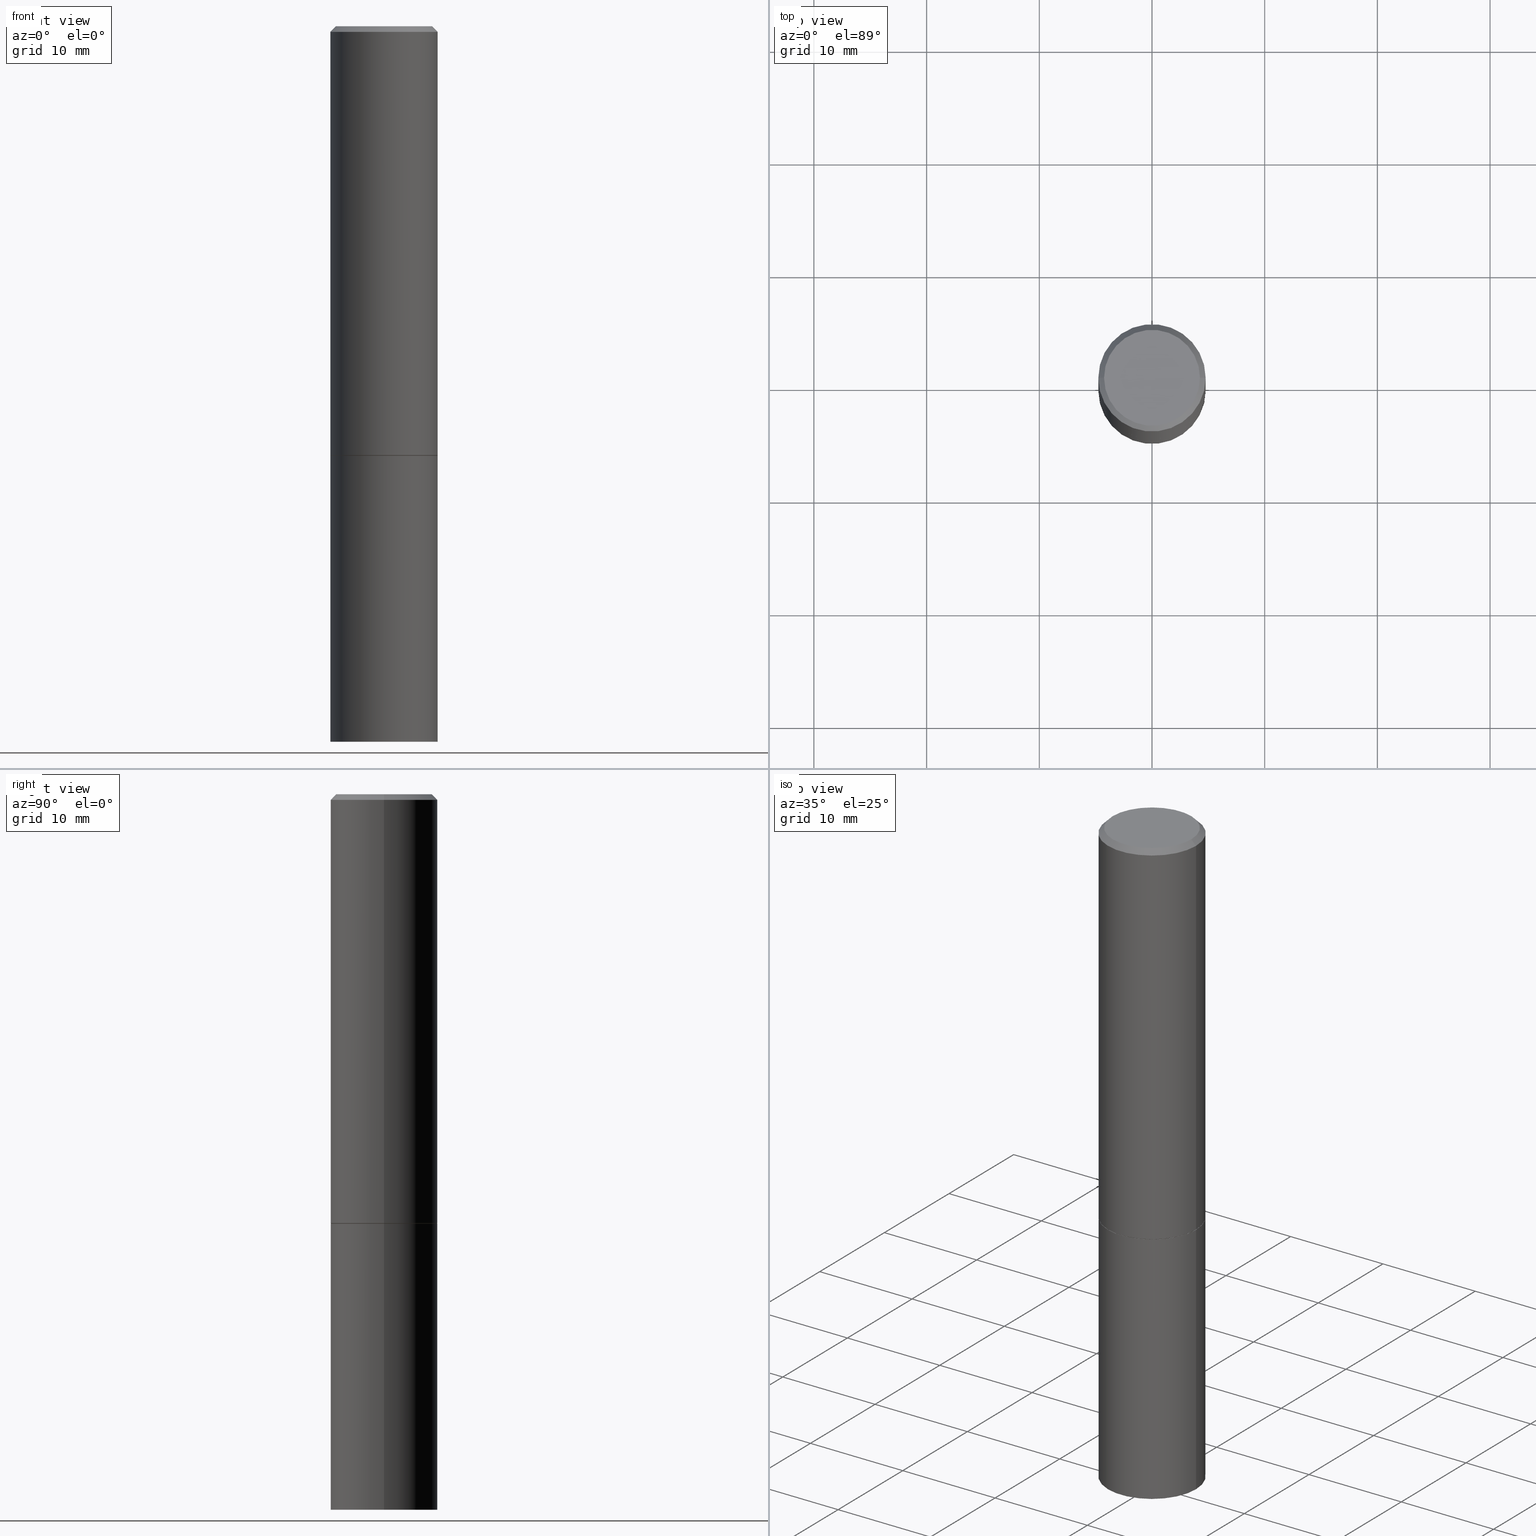
[diagram: canonical four-view strip — front | top / right | iso, engineering-drawing reading convention]
A machine part, canonical four-view strip (front | top / right | iso — engineering-drawing reading convention). The complete STEP part file that produces these views, byte-faithful:
ISO-10303-21;
HEADER;
FILE_DESCRIPTION (( 'STEP AP203' ),
    '1' );
FILE_NAME ('30179.STEP',
    '2023-03-21T20:24:40',
    ( '' ),
    ( '' ),
    'SwSTEP 2.0',
    'SolidWorks 2022',
    '' );
FILE_SCHEMA (( 'CONFIG_CONTROL_DESIGN' ));
ENDSEC;

DATA;
#1 = CARTESIAN_POINT ( 'NONE',  ( 1.309305502066211690E-15, 0.1874999999999947820, -1.500000000000000666 ) ) ;
#2 = COORDINATED_UNIVERSAL_TIME_OFFSET ( 5, 0, .BEHIND. ) ;
#3 = APPROVAL_STATUS ( 'not_yet_approved' ) ;
#4 = CYLINDRICAL_SURFACE ( 'NONE', #201, 0.1875000000000000278 ) ;
#5 = CARTESIAN_POINT ( 'NONE',  ( 3.668203209277704895E-29, -5.237222008264718177E-15, -1.500000000000000222 ) ) ;
#6 = COORDINATED_UNIVERSAL_TIME_OFFSET ( 5, 0, .BEHIND. ) ;
#7 = CARTESIAN_POINT ( 'NONE',  ( 0.000000000000000000, 0.000000000000000000, 0.000000000000000000 ) ) ;
#8 = PERSON_AND_ORGANIZATION ( #159, #151 ) ;
#9 = AXIS2_PLACEMENT_3D ( 'NONE', #353, #175, #52 ) ;
#10 = CARTESIAN_POINT ( 'NONE',  ( -0.1874999999999999722, -1.319512447301180005E-15, -1.499000000000000110 ) ) ;
#11 = ORIENTED_EDGE ( 'NONE', *, *, #19, .F. ) ;
#12 = CARTESIAN_POINT ( 'NONE',  ( -0.1874999999999999167, 1.332267629550187257E-15, -9.223003294227943787E-30 ) ) ;
#13 = CLOSED_SHELL ( 'NONE', ( #177, #205, #30, #248, #285, #131, #298, #180 ) ) ;
#14 = EDGE_LOOP ( 'NONE', ( #381, #264, #210, #369 ) ) ;
#15 = FACE_OUTER_BOUND ( 'NONE', #185, .T. ) ;
#16 = ORIENTED_EDGE ( 'NONE', *, *, #32, .T. ) ;
#17 = DIRECTION ( 'NONE',  ( 2.445468806185136597E-29, -3.491481338843145583E-15, -1.000000000000000000 ) ) ;
#18 = ORIENTED_EDGE ( 'NONE', *, *, #34, .F. ) ;
#19 = EDGE_CURVE ( 'NONE', #280, #306, #227, .T. ) ;
#20 = DESIGN_CONTEXT ( 'detailed design', #90, 'design' ) ;
#21 = CYLINDRICAL_SURFACE ( 'NONE', #68, 0.1874999999999999167 ) ;
#22 = CARTESIAN_POINT ( 'NONE',  ( 3.668203209277704895E-29, -5.237222008264718177E-15, -1.500000000000000222 ) ) ;
#23 = ORIENTED_EDGE ( 'NONE', *, *, #347, .T. ) ;
#24 = CARTESIAN_POINT ( 'NONE',  ( 0.1874999999999999167, -1.309305502066174219E-15, 9.142831454617375408E-30 ) ) ;
#25 = CARTESIAN_POINT ( 'NONE',  ( -0.1864999999999999991, -3.912059806072131336E-15, -1.500000000000000222 ) ) ;
#26 = FACE_OUTER_BOUND ( 'NONE', #204, .T. ) ;
#27 = DIRECTION ( 'NONE',  ( 1.000000000000000000, -6.982962677686266711E-15, 4.876502603340349702E-29 ) ) ;
#28 = AXIS2_PLACEMENT_3D ( 'NONE', #372, #208, #199 ) ;
#29 = CC_DESIGN_SECURITY_CLASSIFICATION ( #145, ( #341 ) ) ;
#30 = ADVANCED_FACE ( 'NONE', ( #355 ), #287, .T. ) ;
#31 = APPROVAL_ROLE ( '' ) ;
#32 = EDGE_CURVE ( 'NONE', #81, #58, #108, .T. ) ;
#33 = APPROVAL_ROLE ( '' ) ;
#34 = EDGE_CURVE ( 'NONE', #314, #370, #245, .T. ) ;
#35 = APPROVAL_DATE_TIME ( #100, #386 ) ;
#36 = VECTOR ( 'NONE', #188, 39.37007874015748143 ) ;
#37 = CARTESIAN_POINT ( 'NONE',  ( 1.023679411735509486E-27, -1.461542896802698140E-13, -41.86025228154191069 ) ) ;
#38 = DIRECTION ( 'NONE',  ( -2.445468806185136597E-29, 3.491481338843145583E-15, 1.000000000000000000 ) ) ;
#39 = DATE_AND_TIME ( #193, #223 ) ;
#40 = PRODUCT ( '30179', '30179', '', ( #93 ) ) ;
#41 = CYLINDRICAL_SURFACE ( 'NONE', #374, 0.1875000000000000278 ) ;
#42 = ADVANCED_FACE ( 'NONE', ( #315 ), #333, .F. ) ;
#43 = VECTOR ( 'NONE', #339, 39.37007874015748143 ) ;
#44 = EDGE_LOOP ( 'NONE', ( #153, #319, #73, #317 ) ) ;
#45 = CIRCLE ( 'NONE', #206, 0.1674999999999998435 ) ;
#46 = ORIENTED_EDGE ( 'NONE', *, *, #291, .T. ) ;
#47 = DIRECTION ( 'NONE',  ( -0.7071067811865232589, 7.493145998870265808E-15, 0.7071067811865715536 ) ) ;
#48 = AXIS2_PLACEMENT_3D ( 'NONE', #286, #17, #184 ) ;
#49 = ORIENTED_EDGE ( 'NONE', *, *, #107, .F. ) ;
#50 = DIRECTION ( 'NONE',  ( 1.000000000000000000, -6.982962677686266711E-15, 0.000000000000000000 ) ) ;
#51 = ADVANCED_FACE ( 'NONE', ( #198 ), #41, .T. ) ;
#52 = DIRECTION ( 'NONE',  ( 1.000000000000000000, -6.982962677686266711E-15, 0.000000000000000000 ) ) ;
#53 = DIRECTION ( 'NONE',  ( 1.000000000000000000, -6.982962677686268288E-15, 0.000000000000000000 ) ) ;
#54 = DIRECTION ( 'NONE',  ( -2.438088387897960049E-29, 3.491481338843145188E-15, 1.000000000000000000 ) ) ;
#55 = CARTESIAN_POINT ( 'NONE',  ( -0.1874999999999998335, 1.239475875289310921E-15, -0.02000000000000001429 ) ) ;
#56 = CARTESIAN_POINT ( 'NONE',  ( -0.1874999999999998335, 1.239475875289310921E-15, -0.02000000000000001429 ) ) ;
#57 = APPROVAL ( #273, 'UNSPECIFIED' ) ;
#58 = VERTEX_POINT ( 'NONE', #170 ) ;
#59 = CARTESIAN_POINT ( 'NONE',  ( -0.1875000000000000278, 1.332267629550188046E-15, -9.223003294227947991E-30 ) ) ;
#60 = DIRECTION ( 'NONE',  ( 0.000000000000000000, 0.000000000000000000, 1.000000000000000000 ) ) ;
#61 = CONICAL_SURFACE ( 'NONE', #48, 751.2258538476485228, 1.518436449235072372 ) ;
#62 = ORIENTED_EDGE ( 'NONE', *, *, #34, .T. ) ;
#63 = ADVANCED_FACE ( 'NONE', ( #224 ), #4, .T. ) ;
#64 = SECURITY_CLASSIFICATION_LEVEL ( 'unclassified' ) ;
#65 = PERSON_AND_ORGANIZATION_ROLE ( 'creator' ) ;
#66 = PERSON_AND_ORGANIZATION ( #159, #151 ) ;
#67 = VECTOR ( 'NONE', #47, 39.37007874015748854 ) ;
#68 = AXIS2_PLACEMENT_3D ( 'NONE', #82, #378, #213 ) ;
#69 = DIRECTION ( 'NONE',  ( -2.445468806185136597E-29, 3.491481338843145583E-15, 1.000000000000000000 ) ) ;
#70 = CARTESIAN_POINT ( 'NONE',  ( 0.000000000000000000, 0.000000000000000000, 0.000000000000000000 ) ) ;
#71 = CARTESIAN_POINT ( 'NONE',  ( 0.1874999999999998335, -1.356173001359024283E-15, -0.02000000000000001429 ) ) ;
#72 = DIRECTION ( 'NONE',  ( -2.445468806185136597E-29, 3.491481338843145583E-15, 1.000000000000000000 ) ) ;
#73 = ORIENTED_EDGE ( 'NONE', *, *, #19, .T. ) ;
#74 = DIRECTION ( 'NONE',  ( -2.445468806185136597E-29, 3.491481338843145583E-15, 1.000000000000000000 ) ) ;
#75 = ORIENTED_EDGE ( 'NONE', *, *, #183, .T. ) ;
#76 = LINE ( 'NONE', #25, #67 ) ;
#77 = DIMENSIONAL_EXPONENTS ( 1.000000000000000000, 0.000000000000000000, 0.000000000000000000, 0.000000000000000000, 0.000000000000000000, 0.000000000000000000, 0.000000000000000000 ) ;
#78 = ORIENTED_EDGE ( 'NONE', *, *, #107, .T. ) ;
#79 = VERTEX_POINT ( 'NONE', #10 ) ;
#80 = CC_DESIGN_APPROVAL ( #386, ( #145 ) ) ;
#81 = VERTEX_POINT ( 'NONE', #249 ) ;
#82 = CARTESIAN_POINT ( 'NONE',  ( 0.000000000000000000, 0.000000000000000000, 0.000000000000000000 ) ) ;
#83 = EDGE_CURVE ( 'NONE', #283, #58, #200, .T. ) ;
#84 = DIRECTION ( 'NONE',  ( -2.445468806185136597E-29, 3.491481338843145583E-15, 1.000000000000000000 ) ) ;
#85 = ORIENTED_EDGE ( 'NONE', *, *, #83, .T. ) ;
#86 = ORIENTED_EDGE ( 'NONE', *, *, #139, .T. ) ;
#87 = PRODUCT_DEFINITION ( 'UNKNOWN', '', #341, #20 ) ;
#88 = CARTESIAN_POINT ( 'NONE',  ( 6.113672015462842613E-29, -8.728703347107864943E-15, -2.500000000000000000 ) ) ;
#89 = CARTESIAN_POINT ( 'NONE',  ( -3.131554243005659264E-46, 4.471029511141341874E-32, 1.280553747030123384E-17 ) ) ;
#90 = APPLICATION_CONTEXT ( 'configuration controlled 3d designs of mechanical parts and assemblies' ) ;
#91 = CARTESIAN_POINT ( 'NONE',  ( 4.890937612370275786E-31, -6.982962677686296539E-17, -0.02000000000000001429 ) ) ;
#92 = FACE_OUTER_BOUND ( 'NONE', #143, .T. ) ;
#93 = MECHANICAL_CONTEXT ( 'NONE', #176, 'mechanical' ) ;
#94 = AXIS2_PLACEMENT_3D ( 'NONE', #351, #387, #297 ) ;
#95 = VECTOR ( 'NONE', #144, 39.37007874015748143 ) ;
#96 = CARTESIAN_POINT ( 'NONE',  ( 7.813000686771749939E-18, -8.694394450224689325E-15, -2.490173541384431033 ) ) ;
#97 = DIRECTION ( 'NONE',  ( -2.445468806185136597E-29, 3.491481338843145583E-15, 1.000000000000000000 ) ) ;
#98 = PERSON_AND_ORGANIZATION ( #159, #151 ) ;
#99 = CYLINDRICAL_SURFACE ( 'NONE', #187, 0.1874999999999999167 ) ;
#100 = DATE_AND_TIME ( #252, #202 ) ;
#101 = CIRCLE ( 'NONE', #349, 0.1864999999999999991 ) ;
#102 =( GEOMETRIC_REPRESENTATION_CONTEXT ( 3 ) GLOBAL_UNCERTAINTY_ASSIGNED_CONTEXT ( ( #118 ) ) GLOBAL_UNIT_ASSIGNED_CONTEXT ( ( #382, #233, #320 ) ) REPRESENTATION_CONTEXT ( 'NONE', 'WORKASPACE' ) );
#103 = EDGE_CURVE ( 'NONE', #79, #226, #133, .T. ) ;
#104 = LINE ( 'NONE', #71, #294 ) ;
#105 = EDGE_LOOP ( 'NONE', ( #327, #342, #111, #385 ) ) ;
#106 = DIRECTION ( 'NONE',  ( 2.445468806185136597E-29, -3.491481338843145583E-15, -1.000000000000000000 ) ) ;
#107 = EDGE_CURVE ( 'NONE', #226, #79, #302, .T. ) ;
#108 = CIRCLE ( 'NONE', #179, 0.1875000000000000278 ) ;
#109 = CC_DESIGN_PERSON_AND_ORGANIZATION_ASSIGNMENT ( #163, #154, ( #341 ) ) ;
#110 = ORIENTED_EDGE ( 'NONE', *, *, #32, .F. ) ;
#111 = ORIENTED_EDGE ( 'NONE', *, *, #363, .T. ) ;
#112 = VECTOR ( 'NONE', #241, 39.37007874015748854 ) ;
#113 = APPROVAL_PERSON_ORGANIZATION ( #217, #307, #31 ) ;
#114 = EDGE_CURVE ( 'NONE', #256, #228, #101, .T. ) ;
#115 = DIRECTION ( 'NONE',  ( 1.000000000000000000, -6.982962677686266711E-15, 0.000000000000000000 ) ) ;
#116 = CARTESIAN_POINT ( 'NONE',  ( 0.1874999999999996947, -1.001504672169002396E-14, -2.500000000000000000 ) ) ;
#117 = ORIENTED_EDGE ( 'NONE', *, *, #328, .T. ) ;
#118 = UNCERTAINTY_MEASURE_WITH_UNIT (LENGTH_MEASURE( 1.000000000000000082E-05 ), #382, 'distance_accuracy_value', 'NONE');
#119 = CARTESIAN_POINT ( 'NONE',  ( 4.890937612370275786E-31, -6.982962677686296539E-17, -0.02000000000000001429 ) ) ;
#120 = CARTESIAN_POINT ( 'NONE',  ( 0.1864999999999999991, -6.539544547653207171E-15, -1.500000000000000222 ) ) ;
#121 = EDGE_CURVE ( 'NONE', #256, #226, #388, .T. ) ;
#122 = DIRECTION ( 'NONE',  ( -2.445468806185136597E-29, 3.491481338843145583E-15, 1.000000000000000000 ) ) ;
#123 = DIRECTION ( 'NONE',  ( 1.000000000000000000, 0.000000000000000000, 0.000000000000000000 ) ) ;
#124 = DIRECTION ( 'NONE',  ( 1.000000000000000000, -6.982962677686266711E-15, 0.000000000000000000 ) ) ;
#125 = CALENDAR_DATE ( 2023, 21, 3 ) ;
#126 = VECTOR ( 'NONE', #240, 39.37007874015748143 ) ;
#127 = DIRECTION ( 'NONE',  ( 1.000000000000000000, -6.982962677686266711E-15, 0.000000000000000000 ) ) ;
#128 = SHAPE_DEFINITION_REPRESENTATION ( #254, #309 ) ;
#129 = DIRECTION ( 'NONE',  ( 1.000000000000000000, -6.982962677686268288E-15, 0.000000000000000000 ) ) ;
#130 = CALENDAR_DATE ( 2023, 21, 3 ) ;
#131 = ADVANCED_FACE ( 'NONE', ( #92 ), #338, .T. ) ;
#132 = DATE_AND_TIME ( #130, #334 ) ;
#133 = CIRCLE ( 'NONE', #167, 0.1875000000000000278 ) ;
#134 = AXIS2_PLACEMENT_3D ( 'NONE', #211, #84, #348 ) ;
#135 = EDGE_CURVE ( 'NONE', #228, #256, #246, .T. ) ;
#136 = DIRECTION ( 'NONE',  ( 0.7071067811865469066, -7.319954787623254468E-15, -0.7071067811865481278 ) ) ;
#137 = ORIENTED_EDGE ( 'NONE', *, *, #234, .F. ) ;
#138 = DIRECTION ( 'NONE',  ( 1.000000000000000000, -6.982962677686265922E-15, 4.876176775795935793E-29 ) ) ;
#139 = EDGE_CURVE ( 'NONE', #228, #79, #76, .T. ) ;
#140 = ORIENTED_EDGE ( 'NONE', *, *, #121, .F. ) ;
#141 = AXIS2_PLACEMENT_3D ( 'NONE', #380, #54, #325 ) ;
#142 = PLANE ( 'NONE',  #28 ) ;
#143 = EDGE_LOOP ( 'NONE', ( #260, #229, #318, #277 ) ) ;
#144 = DIRECTION ( 'NONE',  ( -2.445468806185136877E-29, 3.491481338843145188E-15, 1.000000000000000000 ) ) ;
#145 = SECURITY_CLASSIFICATION ( '', '', #64 ) ;
#146 = EDGE_LOOP ( 'NONE', ( #215, #86, #49, #140 ) ) ;
#147 = LINE ( 'NONE', #55, #126 ) ;
#148 = ORIENTED_EDGE ( 'NONE', *, *, #360, .T. ) ;
#149 = LINE ( 'NONE', #292, #174 ) ;
#150 = AXIS2_PLACEMENT_3D ( 'NONE', #390, #321, #53 ) ;
#151 = ORGANIZATION ( 'UNSPECIFIED', 'UNSPECIFIED', '' ) ;
#152 = DIRECTION ( 'NONE',  ( -2.445468806185136597E-29, 3.491481338843145583E-15, 1.000000000000000000 ) ) ;
#153 = ORIENTED_EDGE ( 'NONE', *, *, #291, .F. ) ;
#154 = PERSON_AND_ORGANIZATION_ROLE ( 'design_supplier' ) ;
#155 = DIRECTION ( 'NONE',  ( 2.445468806185136597E-29, -3.491481338843145583E-15, -1.000000000000000000 ) ) ;
#156 = ADVANCED_FACE ( 'NONE', ( #157 ), #300, .F. ) ;
#157 = FACE_OUTER_BOUND ( 'NONE', #282, .T. ) ;
#158 = CARTESIAN_POINT ( 'NONE',  ( 4.890937612370275786E-31, -6.982962677686296539E-17, -0.02000000000000001429 ) ) ;
#159 = PERSON ( 'UNSPECIFIED', 'UNSPECIFIED', 'UNSPECIFIED', ('UNSPECIFIED'), ('UNSPECIFIED'), ('UNSPECIFIED') ) ;
#160 = APPROVAL_PERSON_ORGANIZATION ( #98, #386, #33 ) ;
#161 = COORDINATED_UNIVERSAL_TIME_OFFSET ( 5, 0, .BEHIND. ) ;
#162 = CC_DESIGN_PERSON_AND_ORGANIZATION_ASSIGNMENT ( #8, #218, ( #40 ) ) ;
#163 = PERSON_AND_ORGANIZATION ( #159, #151 ) ;
#164 = VERTEX_POINT ( 'NONE', #361 ) ;
#165 = CARTESIAN_POINT ( 'NONE',  ( 0.000000000000000000, 0.000000000000000000, 0.000000000000000000 ) ) ;
#166 = EDGE_CURVE ( 'NONE', #306, #280, #266, .T. ) ;
#167 = AXIS2_PLACEMENT_3D ( 'NONE', #295, #122, #243 ) ;
#168 = LOCAL_TIME ( 16, 24, 40.00000000000000000, #161 ) ;
#169 = EDGE_LOOP ( 'NONE', ( #23, #85, #110, #257 ) ) ;
#170 = CARTESIAN_POINT ( 'NONE',  ( -0.1875000000000000278, -5.650695048136103317E-15, -1.500000000000000222 ) ) ;
#171 = VERTEX_POINT ( 'NONE', #225 ) ;
#172 = CONICAL_SURFACE ( 'NONE', #383, 0.1864999999999999991, 0.7853981633974141952 ) ;
#173 = CLOSED_SHELL ( 'NONE', ( #63, #42, #312, #51, #156 ) ) ;
#174 = VECTOR ( 'NONE', #375, 39.37007874015748854 ) ;
#175 = DIRECTION ( 'NONE',  ( -2.445468806185136597E-29, 3.491481338843145583E-15, 1.000000000000000000 ) ) ;
#176 = APPLICATION_CONTEXT ( 'configuration controlled 3d designs of mechanical parts and assemblies' ) ;
#177 = ADVANCED_FACE ( 'NONE', ( #336 ), #172, .T. ) ;
#178 = CARTESIAN_POINT ( 'NONE',  ( 6.084185928223594161E-29, -8.702207450911401298E-15, -2.490173541384431033 ) ) ;
#179 = AXIS2_PLACEMENT_3D ( 'NONE', #389, #69, #124 ) ;
#180 = ADVANCED_FACE ( 'NONE', ( #15 ), #142, .F. ) ;
#181 = CARTESIAN_POINT ( 'NONE',  ( -0.1874999999999996947, -7.419397845041691512E-15, -2.500000000000000000 ) ) ;
#182 = FACE_OUTER_BOUND ( 'NONE', #14, .T. ) ;
#183 = EDGE_CURVE ( 'NONE', #370, #81, #281, .T. ) ;
#184 = DIRECTION ( 'NONE',  ( -1.000000000000000000, 6.982962677686266711E-15, 0.000000000000000000 ) ) ;
#185 = EDGE_LOOP ( 'NONE', ( #148, #46 ) ) ;
#186 = AXIS2_PLACEMENT_3D ( 'NONE', #192, #97, #50 ) ;
#187 = AXIS2_PLACEMENT_3D ( 'NONE', #165, #72, #138 ) ;
#188 = DIRECTION ( 'NONE',  ( -2.445468806185136877E-29, 3.491481338843145188E-15, 1.000000000000000000 ) ) ;
#189 = APPLICATION_PROTOCOL_DEFINITION ( 'international standard', 'config_control_design', 1994, #90 ) ;
#190 = EDGE_CURVE ( 'NONE', #164, #280, #104, .T. ) ;
#191 = ORIENTED_EDGE ( 'NONE', *, *, #293, .T. ) ;
#192 = CARTESIAN_POINT ( 'NONE',  ( 3.665757740471519853E-29, -5.233730526925875958E-15, -1.499000000000000110 ) ) ;
#193 = CALENDAR_DATE ( 2023, 21, 3 ) ;
#194 = COORDINATED_UNIVERSAL_TIME_OFFSET ( 5, 0, .BEHIND. ) ;
#195 = DIRECTION ( 'NONE',  ( 1.000000000000000000, -6.982962677686265922E-15, 4.876176775795935793E-29 ) ) ;
#196 = PERSON_AND_ORGANIZATION ( #159, #151 ) ;
#197 = CC_DESIGN_APPROVAL ( #57, ( #87 ) ) ;
#198 = FACE_OUTER_BOUND ( 'NONE', #316, .T. ) ;
#199 = DIRECTION ( 'NONE',  ( -1.000000000000000000, 6.982962677686265922E-15, -4.876176775795935793E-29 ) ) ;
#200 = LINE ( 'NONE', #59, #36 ) ;
#201 = AXIS2_PLACEMENT_3D ( 'NONE', #70, #278, #253 ) ;
#202 = LOCAL_TIME ( 16, 24, 40.00000000000000000, #194 ) ;
#203 = ORIENTED_EDGE ( 'NONE', *, *, #347, .F. ) ;
#204 = EDGE_LOOP ( 'NONE', ( #373, #340 ) ) ;
#205 = ADVANCED_FACE ( 'NONE', ( #310 ), #99, .T. ) ;
#206 = AXIS2_PLACEMENT_3D ( 'NONE', #89, #152, #27 ) ;
#207 = ORIENTED_EDGE ( 'NONE', *, *, #328, .F. ) ;
#208 = DIRECTION ( 'NONE',  ( 2.438088387897960049E-29, -3.491481338843145188E-15, -1.000000000000000000 ) ) ;
#209 = ORIENTED_EDGE ( 'NONE', *, *, #234, .T. ) ;
#210 = ORIENTED_EDGE ( 'NONE', *, *, #244, .T. ) ;
#211 = CARTESIAN_POINT ( 'NONE',  ( -3.131554243005659264E-46, 4.471029511141341874E-32, 1.280553747030123384E-17 ) ) ;
#212 = LINE ( 'NONE', #24, #95 ) ;
#213 = DIRECTION ( 'NONE',  ( 1.000000000000000000, -6.982962677686265922E-15, 4.876176775795935793E-29 ) ) ;
#214 = PERSON_AND_ORGANIZATION_ROLE ( 'creator' ) ;
#215 = ORIENTED_EDGE ( 'NONE', *, *, #114, .T. ) ;
#216 = CIRCLE ( 'NONE', #134, 0.1674999999999998435 ) ;
#217 = PERSON_AND_ORGANIZATION ( #159, #151 ) ;
#218 = PERSON_AND_ORGANIZATION_ROLE ( 'design_owner' ) ;
#219 = EDGE_CURVE ( 'NONE', #79, #306, #284, .T. ) ;
#220 = DIRECTION ( 'NONE',  ( 2.438088387897960049E-29, -3.491481338843145188E-15, -1.000000000000000000 ) ) ;
#221 = APPROVAL_DATE_TIME ( #39, #57 ) ;
#222 = AXIS2_PLACEMENT_3D ( 'NONE', #37, #106, #251 ) ;
#223 = LOCAL_TIME ( 16, 24, 40.00000000000000000, #255 ) ;
#224 = FACE_OUTER_BOUND ( 'NONE', #169, .T. ) ;
#225 = CARTESIAN_POINT ( 'NONE',  ( -0.1674999999999998435, 1.204561061900879864E-15, 1.280553747029293077E-17 ) ) ;
#226 = VERTEX_POINT ( 'NONE', #323 ) ;
#227 = CIRCLE ( 'NONE', #94, 0.1874999999999998335 ) ;
#228 = VERTEX_POINT ( 'NONE', #308 ) ;
#229 = ORIENTED_EDGE ( 'NONE', *, *, #135, .T. ) ;
#230 = AXIS2_PLACEMENT_3D ( 'NONE', #91, #155, #269 ) ;
#231 = AXIS2_PLACEMENT_3D ( 'NONE', #119, #290, #235 ) ;
#232 = ORIENTED_EDGE ( 'NONE', *, *, #219, .T. ) ;
#233 =( NAMED_UNIT ( * ) PLANE_ANGLE_UNIT ( ) SI_UNIT ( $, .RADIAN. ) );
#234 = EDGE_CURVE ( 'NONE', #58, #81, #259, .T. ) ;
#235 = DIRECTION ( 'NONE',  ( -1.000000000000000000, 6.982962677686266711E-15, 0.000000000000000000 ) ) ;
#236 =( LENGTH_UNIT ( ) NAMED_UNIT ( * ) SI_UNIT ( $, .METRE. ) );
#237 = ORIENTED_EDGE ( 'NONE', *, *, #83, .F. ) ;
#238 = DIRECTION ( 'NONE',  ( 1.000000000000000000, -6.982962677686268288E-15, 0.000000000000000000 ) ) ;
#239 = CC_DESIGN_PERSON_AND_ORGANIZATION_ASSIGNMENT ( #301, #214, ( #341 ) ) ;
#240 = DIRECTION ( 'NONE',  ( -0.7071067811865469066, 2.468850131082250355E-15, -0.7071067811865481278 ) ) ;
#241 = DIRECTION ( 'NONE',  ( 0.7071067811865232589, -2.468850131082003836E-15, 0.7071067811865715536 ) ) ;
#242 = DIRECTION ( 'NONE',  ( -2.445468806185136877E-29, 3.491481338843145188E-15, 1.000000000000000000 ) ) ;
#243 = DIRECTION ( 'NONE',  ( 1.000000000000000000, -6.982962677686266711E-15, 0.000000000000000000 ) ) ;
#244 = EDGE_CURVE ( 'NONE', #171, #306, #147, .T. ) ;
#245 = LINE ( 'NONE', #96, #326 ) ;
#246 = CIRCLE ( 'NONE', #337, 0.1864999999999999991 ) ;
#247 = DATE_TIME_ROLE ( 'classification_date' ) ;
#248 = ADVANCED_FACE ( 'NONE', ( #182 ), #350, .T. ) ;
#249 = CARTESIAN_POINT ( 'NONE',  ( 0.1875000000000000278, -6.546527510330893974E-15, -1.500000000000000222 ) ) ;
#250 = CARTESIAN_POINT ( 'NONE',  ( 0.1875000000000000278, -1.309305502066175008E-15, 9.142831454617381013E-30 ) ) ;
#251 = DIRECTION ( 'NONE',  ( -1.000000000000000000, 6.982962677686266711E-15, 0.000000000000000000 ) ) ;
#252 = CALENDAR_DATE ( 2023, 21, 3 ) ;
#253 = DIRECTION ( 'NONE',  ( 1.000000000000000000, -6.982962677686265922E-15, 4.876176775795935793E-29 ) ) ;
#254 = PRODUCT_DEFINITION_SHAPE ( 'NONE', 'NONE',  #87 ) ;
#255 = COORDINATED_UNIVERSAL_TIME_OFFSET ( 5, 0, .BEHIND. ) ;
#256 = VERTEX_POINT ( 'NONE', #322 ) ;
#257 = ORIENTED_EDGE ( 'NONE', *, *, #183, .F. ) ;
#258 = FACE_OUTER_BOUND ( 'NONE', #331, .T. ) ;
#259 = CIRCLE ( 'NONE', #9, 0.1875000000000000278 ) ;
#260 = ORIENTED_EDGE ( 'NONE', *, *, #139, .F. ) ;
#261 = CARTESIAN_POINT ( 'NONE',  ( 6.113672015462842613E-29, -8.728703347107864943E-15, -2.500000000000000000 ) ) ;
#262 = ORIENTED_EDGE ( 'NONE', *, *, #363, .F. ) ;
#263 = CARTESIAN_POINT ( 'NONE',  ( 0.1874999999999998335, -1.356173001359024283E-15, -0.02000000000000001429 ) ) ;
#264 = ORIENTED_EDGE ( 'NONE', *, *, #360, .F. ) ;
#265 = DIRECTION ( 'NONE',  ( 1.000000000000000000, -6.982962677686266711E-15, 0.000000000000000000 ) ) ;
#266 = CIRCLE ( 'NONE', #365, 0.1874999999999998335 ) ;
#267 = DIRECTION ( 'NONE',  ( -2.445468806185136597E-29, 3.491481338843145583E-15, 1.000000000000000000 ) ) ;
#268 = PERSON_AND_ORGANIZATION ( #159, #151 ) ;
#269 = DIRECTION ( 'NONE',  ( -1.000000000000000000, 6.982962677686266711E-15, 0.000000000000000000 ) ) ;
#270 = DIRECTION ( 'NONE',  ( -1.000000000000000000, 6.982962677686265922E-15, -4.876176775795935793E-29 ) ) ;
#271 = APPROVAL_ROLE ( '' ) ;
#272 = AXIS2_PLACEMENT_3D ( 'NONE', #261, #346, #115 ) ;
#273 = APPROVAL_STATUS ( 'not_yet_approved' ) ;
#274 = CC_DESIGN_PERSON_AND_ORGANIZATION_ASSIGNMENT ( #268, #332, ( #145 ) ) ;
#275 = DATE_AND_TIME ( #296, #168 ) ;
#276 = CC_DESIGN_DATE_AND_TIME_ASSIGNMENT ( #299, #247, ( #145 ) ) ;
#277 = ORIENTED_EDGE ( 'NONE', *, *, #103, .F. ) ;
#278 = DIRECTION ( 'NONE',  ( -2.445468806185136597E-29, 3.491481338843145583E-15, 1.000000000000000000 ) ) ;
#279 = AXIS2_PLACEMENT_3D ( 'NONE', #362, #60, #123 ) ;
#280 = VERTEX_POINT ( 'NONE', #263 ) ;
#281 = LINE ( 'NONE', #250, #43 ) ;
#282 = EDGE_LOOP ( 'NONE', ( #16, #209 ) ) ;
#283 = VERTEX_POINT ( 'NONE', #181 ) ;
#284 = LINE ( 'NONE', #12, #303 ) ;
#285 = ADVANCED_FACE ( 'NONE', ( #352 ), #21, .T. ) ;
#286 = CARTESIAN_POINT ( 'NONE',  ( 1.023679411735509486E-27, -1.461542896802698140E-13, -41.86025228154191069 ) ) ;
#287 = CONICAL_SURFACE ( 'NONE', #230, 0.1874999999999998335, 0.7853981633974473908 ) ;
#288 = DIRECTION ( 'NONE',  ( -2.445468806185136597E-29, 3.491481338843145583E-15, 1.000000000000000000 ) ) ;
#289 = DIRECTION ( 'NONE',  ( 1.000000000000000000, -6.982962677686268288E-15, 0.000000000000000000 ) ) ;
#290 = DIRECTION ( 'NONE',  ( 2.445468806185136597E-29, -3.491481338843145583E-15, -1.000000000000000000 ) ) ;
#291 = EDGE_CURVE ( 'NONE', #164, #171, #216, .T. ) ;
#292 = CARTESIAN_POINT ( 'NONE',  ( -7.813000686649957211E-18, -8.694394450224689325E-15, -2.490173541384431033 ) ) ;
#293 = EDGE_CURVE ( 'NONE', #283, #370, #384, .T. ) ;
#294 = VECTOR ( 'NONE', #136, 39.37007874015748143 ) ;
#295 = CARTESIAN_POINT ( 'NONE',  ( 3.665757740471519853E-29, -5.233730526925875958E-15, -1.499000000000000110 ) ) ;
#296 = CALENDAR_DATE ( 2023, 21, 3 ) ;
#297 = DIRECTION ( 'NONE',  ( 1.000000000000000000, -6.982962677686266711E-15, 0.000000000000000000 ) ) ;
#298 = ADVANCED_FACE ( 'NONE', ( #26 ), #330, .F. ) ;
#299 = DATE_AND_TIME ( #125, #358 ) ;
#300 = PLANE ( 'NONE',  #344 ) ;
#301 = PERSON_AND_ORGANIZATION ( #159, #151 ) ;
#302 = CIRCLE ( 'NONE', #186, 0.1875000000000000278 ) ;
#303 = VECTOR ( 'NONE', #242, 39.37007874015748143 ) ;
#304 = DIRECTION ( 'NONE',  ( 0.9986295347545742773, -7.033825938272001856E-15, -0.05233595624293820026 ) ) ;
#305 = APPROVAL_DATE_TIME ( #132, #307 ) ;
#306 = VERTEX_POINT ( 'NONE', #56 ) ;
#307 = APPROVAL ( #335, 'UNSPECIFIED' ) ;
#308 = CARTESIAN_POINT ( 'NONE',  ( -0.1864999999999999991, -3.906761351723908934E-15, -1.500000000000000222 ) ) ;
#309 = ADVANCED_BREP_SHAPE_REPRESENTATION ( '30179', ( #357, #367, #279 ), #102 ) ;
#310 = FACE_OUTER_BOUND ( 'NONE', #377, .T. ) ;
#311 = EDGE_LOOP ( 'NONE', ( #207, #62, #343 ) ) ;
#312 = ADVANCED_FACE ( 'NONE', ( #258 ), #61, .F. ) ;
#313 = CIRCLE ( 'NONE', #345, 0.1875000000000000278 ) ;
#314 = VERTEX_POINT ( 'NONE', #178 ) ;
#315 = FACE_OUTER_BOUND ( 'NONE', #311, .T. ) ;
#316 = EDGE_LOOP ( 'NONE', ( #237, #191, #75, #137 ) ) ;
#317 = ORIENTED_EDGE ( 'NONE', *, *, #244, .F. ) ;
#318 = ORIENTED_EDGE ( 'NONE', *, *, #121, .T. ) ;
#319 = ORIENTED_EDGE ( 'NONE', *, *, #190, .T. ) ;
#320 =( NAMED_UNIT ( * ) SI_UNIT ( $, .STERADIAN. ) SOLID_ANGLE_UNIT ( ) );
#321 = DIRECTION ( 'NONE',  ( -2.445468806185136597E-29, 3.491481338843145583E-15, 1.000000000000000000 ) ) ;
#322 = CARTESIAN_POINT ( 'NONE',  ( 0.1864999999999999991, -6.539544547653207171E-15, -1.500000000000000222 ) ) ;
#323 = CARTESIAN_POINT ( 'NONE',  ( 0.1875000000000000278, -6.543036028992050967E-15, -1.499000000000000110 ) ) ;
#324 = CARTESIAN_POINT ( 'NONE',  ( 3.668203209277704895E-29, -5.237222008264718177E-15, -1.500000000000000222 ) ) ;
#325 = DIRECTION ( 'NONE',  ( 1.000000000000000000, -6.982962677686265922E-15, 4.876176775795935793E-29 ) ) ;
#326 = VECTOR ( 'NONE', #304, 39.37007874015748854 ) ;
#327 = ORIENTED_EDGE ( 'NONE', *, *, #219, .F. ) ;
#328 = EDGE_CURVE ( 'NONE', #314, #283, #149, .T. ) ;
#329 = LENGTH_MEASURE_WITH_UNIT ( LENGTH_MEASURE( 0.02539999999999999897 ), #236 );
#330 = PLANE ( 'NONE',  #141 ) ;
#331 = EDGE_LOOP ( 'NONE', ( #18, #117, #203 ) ) ;
#332 = PERSON_AND_ORGANIZATION_ROLE ( 'classification_officer' ) ;
#333 = CONICAL_SURFACE ( 'NONE', #222, 751.2258538476485228, 1.518436449235072372 ) ;
#334 = LOCAL_TIME ( 16, 24, 40.00000000000000000, #6 ) ;
#335 = APPROVAL_STATUS ( 'not_yet_approved' ) ;
#336 = FACE_OUTER_BOUND ( 'NONE', #146, .T. ) ;
#337 = AXIS2_PLACEMENT_3D ( 'NONE', #22, #379, #289 ) ;
#338 = CONICAL_SURFACE ( 'NONE', #150, 0.1864999999999999991, 0.7853981633974141952 ) ;
#339 = DIRECTION ( 'NONE',  ( -2.445468806185136877E-29, 3.491481338843145188E-15, 1.000000000000000000 ) ) ;
#340 = ORIENTED_EDGE ( 'NONE', *, *, #135, .F. ) ;
#341 = PRODUCT_DEFINITION_FORMATION_WITH_SPECIFIED_SOURCE ( 'ANY', '', #40, .NOT_KNOWN. ) ;
#342 = ORIENTED_EDGE ( 'NONE', *, *, #103, .T. ) ;
#343 = ORIENTED_EDGE ( 'NONE', *, *, #293, .F. ) ;
#344 = AXIS2_PLACEMENT_3D ( 'NONE', #1, #220, #270 ) ;
#345 = AXIS2_PLACEMENT_3D ( 'NONE', #88, #288, #265 ) ;
#346 = DIRECTION ( 'NONE',  ( -2.445468806185136597E-29, 3.491481338843145583E-15, 1.000000000000000000 ) ) ;
#347 = EDGE_CURVE ( 'NONE', #370, #283, #313, .T. ) ;
#348 = DIRECTION ( 'NONE',  ( 1.000000000000000000, -6.982962677686266711E-15, 4.876502603340349702E-29 ) ) ;
#349 = AXIS2_PLACEMENT_3D ( 'NONE', #324, #267, #238 ) ;
#350 = CONICAL_SURFACE ( 'NONE', #231, 0.1874999999999998335, 0.7853981633974473908 ) ;
#351 = CARTESIAN_POINT ( 'NONE',  ( 4.890937612370275786E-31, -6.982962677686296539E-17, -0.02000000000000001429 ) ) ;
#352 = FACE_OUTER_BOUND ( 'NONE', #105, .T. ) ;
#353 = CARTESIAN_POINT ( 'NONE',  ( 3.668203209277704895E-29, -5.237222008264718177E-15, -1.500000000000000222 ) ) ;
#354 = PRODUCT_RELATED_PRODUCT_CATEGORY ( 'detail', '', ( #40 ) ) ;
#355 = FACE_OUTER_BOUND ( 'NONE', #44, .T. ) ;
#356 = DATE_TIME_ROLE ( 'creation_date' ) ;
#357 = MANIFOLD_SOLID_BREP ( 'Body-Move/Copy2[1]', #173 ) ;
#358 = LOCAL_TIME ( 16, 24, 40.00000000000000000, #2 ) ;
#359 = APPLICATION_PROTOCOL_DEFINITION ( 'international standard', 'config_control_design', 1994, #176 ) ;
#360 = EDGE_CURVE ( 'NONE', #171, #164, #45, .T. ) ;
#361 = CARTESIAN_POINT ( 'NONE',  ( 0.1674999999999998435, -1.252653207992877302E-15, 1.280553747030970331E-17 ) ) ;
#362 = CARTESIAN_POINT ( 'NONE',  ( 0.000000000000000000, 0.000000000000000000, 0.000000000000000000 ) ) ;
#363 = EDGE_CURVE ( 'NONE', #226, #280, #212, .T. ) ;
#364 = DIRECTION ( 'NONE',  ( -2.445468806185136597E-29, 3.491481338843145583E-15, 1.000000000000000000 ) ) ;
#365 = AXIS2_PLACEMENT_3D ( 'NONE', #158, #364, #127 ) ;
#366 = APPROVAL_PERSON_ORGANIZATION ( #196, #57, #271 ) ;
#367 = MANIFOLD_SOLID_BREP ( 'Body-Move/Copy2[2]', #13 ) ;
#368 = CC_DESIGN_DATE_AND_TIME_ASSIGNMENT ( #275, #356, ( #87 ) ) ;
#369 = ORIENTED_EDGE ( 'NONE', *, *, #166, .T. ) ;
#370 = VERTEX_POINT ( 'NONE', #116 ) ;
#371 = CC_DESIGN_PERSON_AND_ORGANIZATION_ASSIGNMENT ( #66, #65, ( #87 ) ) ;
#372 = CARTESIAN_POINT ( 'NONE',  ( 1.169646248512448609E-15, 0.1674999999999998435, -5.784203555210757353E-16 ) ) ;
#373 = ORIENTED_EDGE ( 'NONE', *, *, #114, .F. ) ;
#374 = AXIS2_PLACEMENT_3D ( 'NONE', #7, #74, #195 ) ;
#375 = DIRECTION ( 'NONE',  ( -0.9986295347545742773, 6.790662755453662155E-15, -0.05233595624293820026 ) ) ;
#376 = CC_DESIGN_APPROVAL ( #307, ( #341 ) ) ;
#377 = EDGE_LOOP ( 'NONE', ( #78, #232, #11, #262 ) ) ;
#378 = DIRECTION ( 'NONE',  ( -2.445468806185136597E-29, 3.491481338843145583E-15, 1.000000000000000000 ) ) ;
#379 = DIRECTION ( 'NONE',  ( -2.445468806185136597E-29, 3.491481338843145583E-15, 1.000000000000000000 ) ) ;
#380 = CARTESIAN_POINT ( 'NONE',  ( 3.668203209277704895E-29, -5.237222008264718177E-15, -1.500000000000000222 ) ) ;
#381 = ORIENTED_EDGE ( 'NONE', *, *, #190, .F. ) ;
#382 =( CONVERSION_BASED_UNIT ( 'INCH', #329 ) LENGTH_UNIT ( ) NAMED_UNIT ( #77 ) );
#383 = AXIS2_PLACEMENT_3D ( 'NONE', #5, #38, #129 ) ;
#384 = CIRCLE ( 'NONE', #272, 0.1875000000000000278 ) ;
#385 = ORIENTED_EDGE ( 'NONE', *, *, #166, .F. ) ;
#386 = APPROVAL ( #3, 'UNSPECIFIED' ) ;
#387 = DIRECTION ( 'NONE',  ( -2.445468806185136597E-29, 3.491481338843145583E-15, 1.000000000000000000 ) ) ;
#388 = LINE ( 'NONE', #120, #112 ) ;
#389 = CARTESIAN_POINT ( 'NONE',  ( 3.668203209277704895E-29, -5.237222008264718177E-15, -1.500000000000000222 ) ) ;
#390 = CARTESIAN_POINT ( 'NONE',  ( 3.668203209277704895E-29, -5.237222008264718177E-15, -1.500000000000000222 ) ) ;
ENDSEC;
END-ISO-10303-21;
